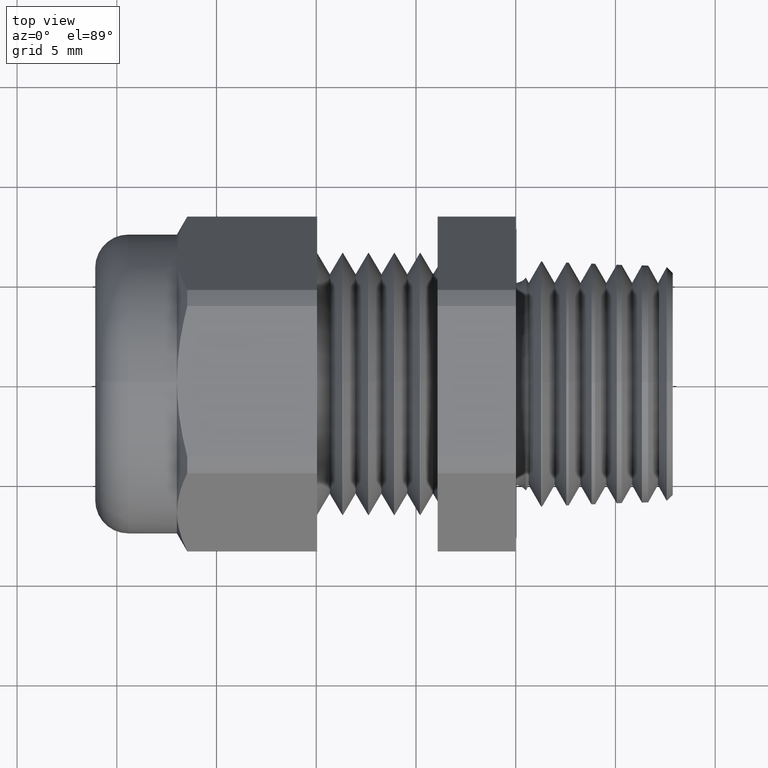
[diagram: clean part render]
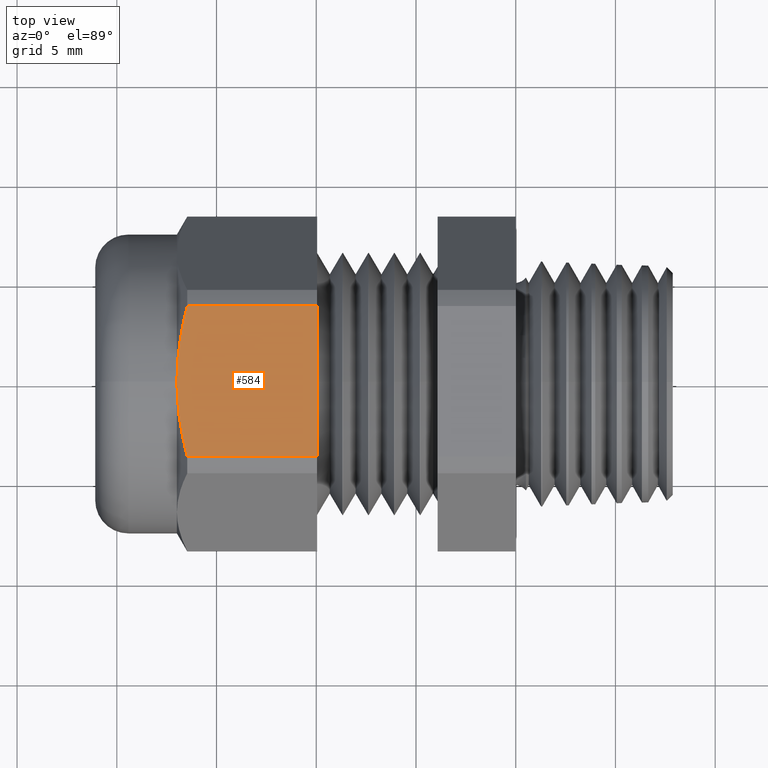
[diagram: same view with one face highlighted and labeled with its STEP entity id]
A machine part, top view. The second image highlights one B-rep face of the part: STEP entity #584.
In plain terms, the highlighted planar face has unit normal (0, 0, 1).
Its self-contained STEP definition (entity closure, byte-faithful):
#307 = VERTEX_POINT ( 'NONE', #1946 ) ;
#572 = ORIENTED_EDGE ( 'NONE', *, *, #653, .T. ) ;
#584 = ADVANCED_FACE ( 'NONE', ( #2367 ), #2478, .T. ) ;
#585 = ORIENTED_EDGE ( 'NONE', *, *, #598, .F. ) ;
#586 = ORIENTED_EDGE ( 'NONE', *, *, #587, .T. ) ;
#587 = EDGE_CURVE ( 'NONE', #595, #307, #2396, .T. ) ;
#588 = ORIENTED_EDGE ( 'NONE', *, *, #589, .T. ) ;
#589 = EDGE_CURVE ( 'NONE', #307, #610, #2440, .T. ) ;
#590 = ORIENTED_EDGE ( 'NONE', *, *, #697, .T. ) ;
#595 = VERTEX_POINT ( 'NONE', #2317 ) ;
#598 = EDGE_CURVE ( 'NONE', #595, #599, #2466, .T. ) ;
#599 = VERTEX_POINT ( 'NONE', #2433 ) ;
#610 = VERTEX_POINT ( 'NONE', #2305 ) ;
#637 = EDGE_LOOP ( 'NONE', ( #585, #586, #588, #590, #572 ) ) ;
#653 = EDGE_CURVE ( 'NONE', #695, #599, #2381, .T. ) ;
#695 = VERTEX_POINT ( 'NONE', #2630 ) ;
#697 = EDGE_CURVE ( 'NONE', #610, #695, #2629, .T. ) ;
#1946 = CARTESIAN_POINT ( 'NONE',  ( -0.6687499999999999600, 0.0000000000000000000, 0.2949999999999998700 ) ) ;
#2305 = CARTESIAN_POINT ( 'NONE',  ( -0.6483118004706871500, -0.1487923385124385600, 0.2949999999999999800 ) ) ;
#2317 = CARTESIAN_POINT ( 'NONE',  ( -0.6483118004706871500, 0.1487923385124385000, 0.2949999999999998700 ) ) ;
#2367 = FACE_OUTER_BOUND ( 'NONE', #637, .T. ) ;
#2369 = CARTESIAN_POINT ( 'NONE',  ( -0.6483118004706871500, -0.1487923385124385600, 0.2949999999999999800 ) ) ;
#2370 = CARTESIAN_POINT ( 'NONE',  ( -0.6546358786678908600, -0.1244693279789880800, 0.2949999999999999300 ) ) ;
#2371 = CARTESIAN_POINT ( 'NONE',  ( -0.6598382952289477700, -0.09962235669522293000, 0.2949999999999998700 ) ) ;
#2372 = CARTESIAN_POINT ( 'NONE',  ( -0.6668849065099121700, -0.04995790088282998200, 0.2949999999999999800 ) ) ;
#2373 = CARTESIAN_POINT ( 'NONE',  ( -0.6687499999999999600, -0.02503176339243232100, 0.2949999999999998200 ) ) ;
#2374 = CARTESIAN_POINT ( 'NONE',  ( -0.6687499999999999600, 0.0000000000000000000, 0.2949999999999998700 ) ) ;
#2378 = DIRECTION ( 'NONE',  ( 0.0000000000000000000, 1.000000000000000000, 0.0000000000000000000 ) ) ;
#2379 = VECTOR ( 'NONE', #2378, 39.37007874015748100 ) ;
#2380 = CARTESIAN_POINT ( 'NONE',  ( -0.3920833333333332800, 0.2596999999999999900, 0.2949999999999998700 ) ) ;
#2381 = LINE ( 'NONE', #2380, #2379 ) ;
#2396 = B_SPLINE_CURVE_WITH_KNOTS ( 'NONE', 3,
 ( #2438, #2437, #2436, #2435, #2434, #2455, #2454, #2453 ),
 .UNSPECIFIED., .F., .F.,
 ( 4, 2, 2, 4 ),
 ( 0.004185498858991982700, 0.006085812393149479500, 0.007035969160228226100, 0.007986125927306974400 ),
 .UNSPECIFIED. ) ;
#2397 = DIRECTION ( 'NONE',  ( 1.000000000000000000, 0.0000000000000000000, 0.0000000000000000000 ) ) ;
#2398 = DIRECTION ( 'NONE',  ( 0.0000000000000000000, 0.0000000000000000000, 1.000000000000000000 ) ) ;
#2399 = CARTESIAN_POINT ( 'NONE',  ( -1.612607445236302800, 0.1487923385124385300, 0.2949999999999998700 ) ) ;
#2433 = CARTESIAN_POINT ( 'NONE',  ( -0.3920833333333332800, 0.1487923385124385000, 0.2949999999999999300 ) ) ;
#2434 = CARTESIAN_POINT ( 'NONE',  ( -0.6664539795682503700, 0.05017414996423327100, 0.2949999999999998700 ) ) ;
#2435 = CARTESIAN_POINT ( 'NONE',  ( -0.6650738706461848400, 0.06279360639189929300, 0.2949999999999998700 ) ) ;
#2436 = CARTESIAN_POINT ( 'NONE',  ( -0.6597381713101825300, 0.1001808597390347500, 0.2949999999999999300 ) ) ;
#2437 = CARTESIAN_POINT ( 'NONE',  ( -0.6545892602780014600, 0.1246486267720973800, 0.2949999999999999800 ) ) ;
#2438 = CARTESIAN_POINT ( 'NONE',  ( -0.6483118004706871500, 0.1487923385124385000, 0.2949999999999998700 ) ) ;
#2440 = B_SPLINE_CURVE_WITH_KNOTS ( 'NONE', 3,
 ( #2374, #2373, #2372, #2371, #2370, #2369 ),
 .UNSPECIFIED., .F., .F.,
 ( 4, 2, 4 ),
 ( 0.007986125927306974400, 0.009887176414941700000, 0.01178822690257642600 ),
 .UNSPECIFIED. ) ;
#2453 = CARTESIAN_POINT ( 'NONE',  ( -0.6687499999999999600, 0.0000000000000000000, 0.2949999999999998700 ) ) ;
#2454 = CARTESIAN_POINT ( 'NONE',  ( -0.6687499999999998400, 0.01251102984057289600, 0.2949999999999999800 ) ) ;
#2455 = CARTESIAN_POINT ( 'NONE',  ( -0.6682886392550061400, 0.02504818793965527700, 0.2949999999999999800 ) ) ;
#2463 = DIRECTION ( 'NONE',  ( 1.000000000000000000, 0.0000000000000000000, 0.0000000000000000000 ) ) ;
#2464 = VECTOR ( 'NONE', #2463, 39.37007874015748100 ) ;
#2465 = CARTESIAN_POINT ( 'NONE',  ( -1.612607445236302800, 0.1487923385124385000, 0.2949999999999999300 ) ) ;
#2466 = LINE ( 'NONE', #2465, #2464 ) ;
#2477 = AXIS2_PLACEMENT_3D ( 'NONE', #2399, #2398, #2397 ) ;
#2478 = PLANE ( 'NONE',  #2477 ) ;
#2628 = CARTESIAN_POINT ( 'NONE',  ( -1.612607445236302800, -0.1487923385124385300, 0.2949999999999998700 ) ) ;
#2629 = LINE ( 'NONE', #2628, #2646 ) ;
#2630 = CARTESIAN_POINT ( 'NONE',  ( -0.3920833333333332800, -0.1487923385124385600, 0.2949999999999999800 ) ) ;
#2645 = DIRECTION ( 'NONE',  ( 1.000000000000000000, 0.0000000000000000000, 0.0000000000000000000 ) ) ;
#2646 = VECTOR ( 'NONE', #2645, 39.37007874015748100 ) ;